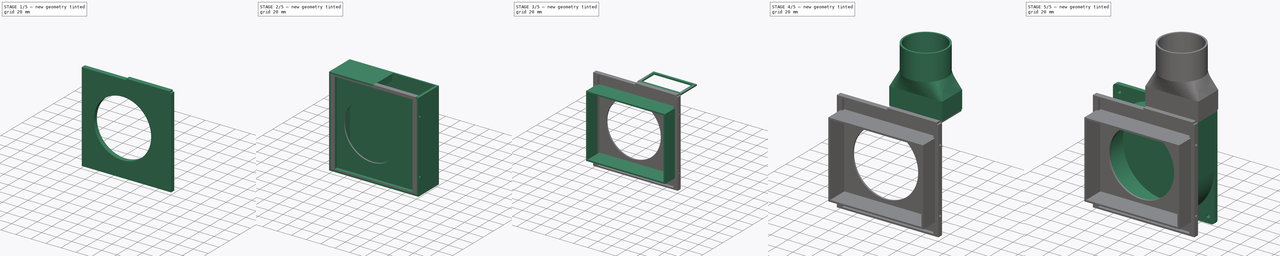
[diagram: build sequence overview — one tinted view per stage of 5, left to right]
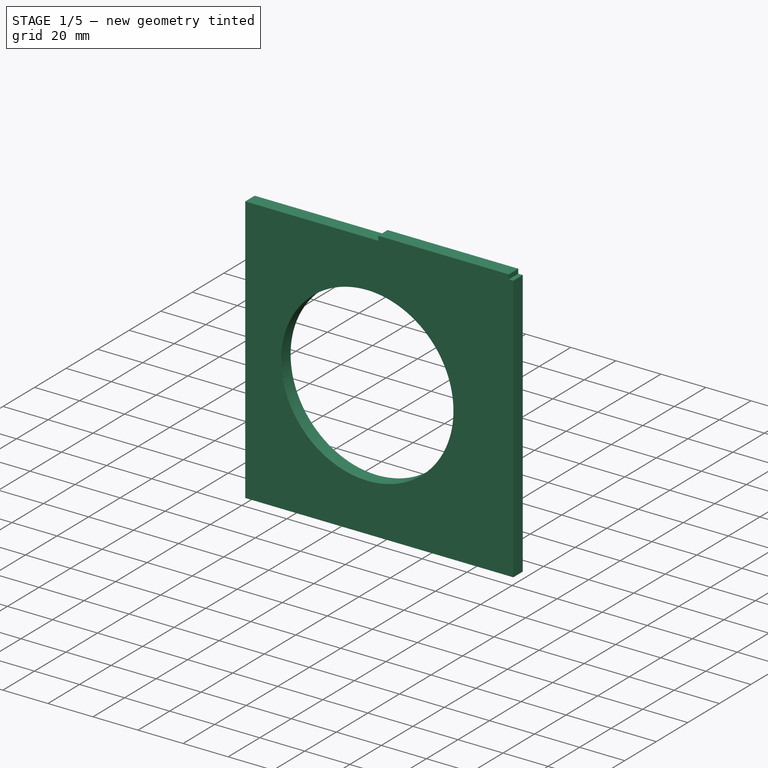
[diagram: stage 1 of 5 — iso view after this stage's code; geometry added in this stage tinted green]
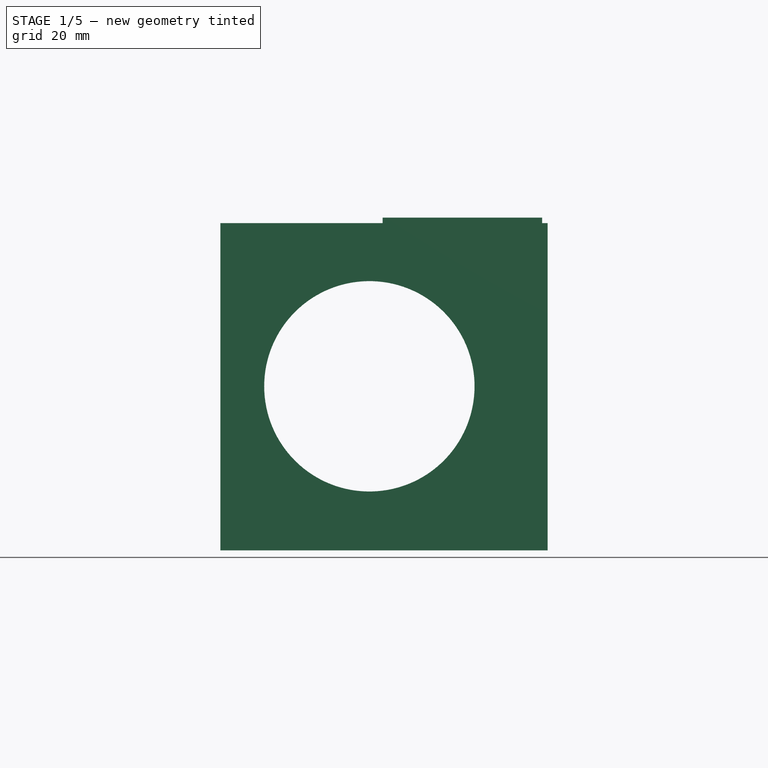
[diagram: stage 1 of 5 — front view after this stage's code; geometry added in this stage tinted green]
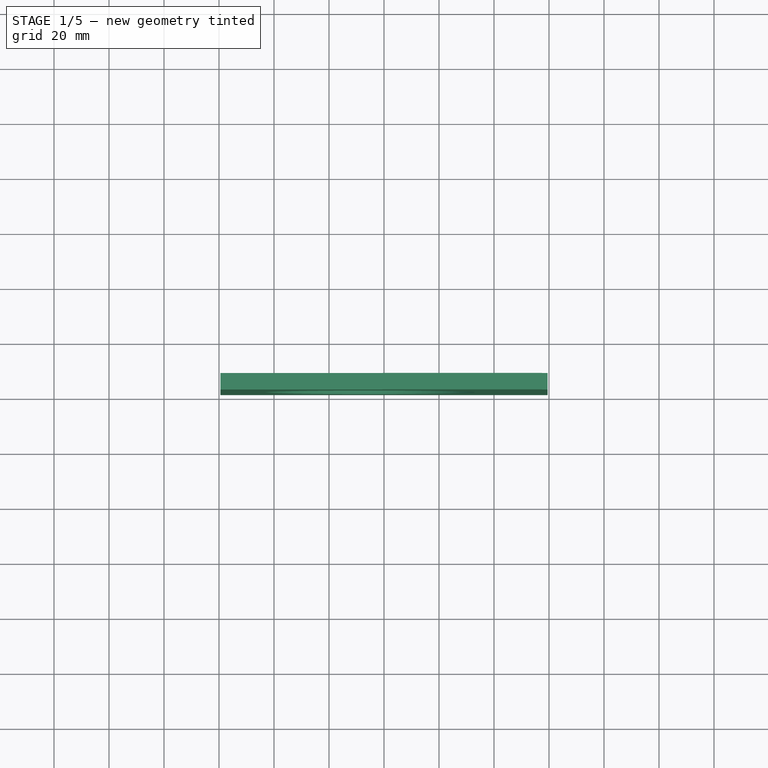
[diagram: stage 1 of 5 — top view after this stage's code; geometry added in this stage tinted green]
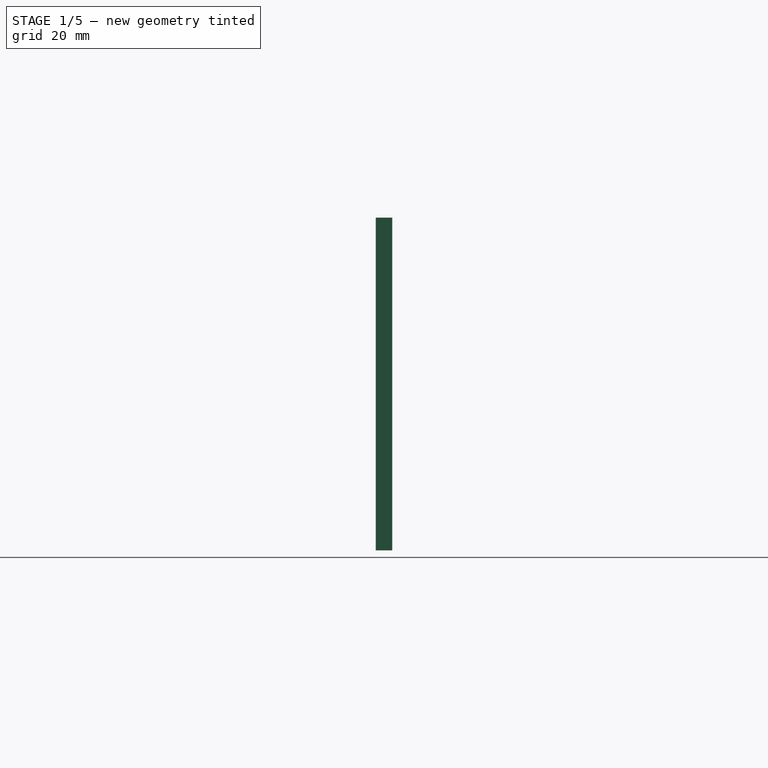
[diagram: stage 1 of 5 — right view after this stage's code; geometry added in this stage tinted green]
FCSTD DOCUMENT  (FreeCAD 0.21R33771 (Git))
Label: RadialExhaustV2.1
License: All rights reserved
LicenseURL: http://en.wikipedia.org/wiki/All_rights_reserved
objects: Sketcher::SketchObject×18, PartDesign::Pad×12, PartDesign::Pocket×7, PartDesign::Body×5, PartDesign::Fillet×1, PartDesign::AdditiveLoft×1
note: 65 computed .brp shape members not serialized (recipe doc carries the construction recipe); baked Part::Feature solids carry a one-line shape summary decoded from their .brp

FEATURE [Sketcher::SketchObject] Sketch  label="FanBackSketch"
  FullyConstrained = true
  MapMode = 5
  Placement = pos=(0,0,0) rot=(1,0,0;1.5708rad)
  Support = -> [XZ_Plane]
  sketch-geometry (8):
    g0: LineSegment StartX=59.5 StartY=-59.5 StartZ=0 EndX=59.5 EndY=59.5 EndZ=0
    g1: LineSegment StartX=59.5 StartY=59.5 StartZ=0 EndX=-59.5 EndY=59.5 EndZ=0
    g2: LineSegment StartX=-59.5 StartY=59.5 StartZ=0 EndX=-59.5 EndY=-59.5 EndZ=0
    g3: LineSegment StartX=-59.5 StartY=-59.5 StartZ=0 EndX=59.5 EndY=-59.5 EndZ=0
    g4: GeomPoint X=0 Y=0 Z=0
    g5: Circle CenterX=-52 CenterY=52 CenterZ=0 NormalX=0 NormalY=0 NormalZ=1 AngleXU=0 Radius=2
    g6: Circle CenterX=52 CenterY=-52 CenterZ=0 NormalX=0 NormalY=0 NormalZ=1 AngleXU=0 Radius=2
    g7: Circle CenterX=-52 CenterY=-52 CenterZ=0 NormalX=0 NormalY=0 NormalZ=1 AngleXU=0 Radius=2
  constraints (22):
    c: Coincident(g0,g1)
    c: Coincident(g1,g2)
    c: Coincident(g2,g3)
    c: Coincident(g3,g0)
    c: Horizontal(g1)
    c: Horizontal(g3)
    c: Vertical(g0)
    c: Vertical(g2)
    c: Symmetric(g1,g0,g4)
    c: Coincident(g4,g-1)
    c: DistanceY(g2,g2) = 119  'height'
    c: DistanceX(g1,g1) = 119  'width'
    c: Equal(g5,g7)
    c: Equal(g5,g6)
    c: Diameter(g5) = 4  'skrewDiameter'
    c: Vertical(g5,g7)
    c: Horizontal(g7,g6)
    c: DistanceX(g2,g7) = 7.5
    c: DistanceY(g2,g7) = 7.5
    c: DistanceY(g5,g1) = 7.5
    c: DistanceX(g6,g0) = 7.5
    c: DistanceX(g7,g4) = 52  'skrewOffset'
FEATURE [PartDesign::Pad] Pad  label="FanBackPad"
  Direction = (0,-1,-2e-16)
  Length = 5
  Length2 = 10
  Placement = pos=(0,0,0) rot=(1,0,0;1.5708rad)
  Profile = -> Sketch
  ReferenceAxis = -> Sketch [N_Axis]
  Type = 0
FEATURE [PartDesign::Body] Body  label="FanBody"
  Group = -> [Sketch,Pad,Sketch001,Pad001,Sketch002,Pocket,Sketch003,Pocket001,Fillet]
  Origin = -> Origin
  Tip = -> Fillet
FEATURE [Sketcher::SketchObject] Sketch004  label="CasingBackSketch"
  FullyConstrained = true
  MapMode = 5
  Placement = pos=(0,0,0) rot=(1,0,0;1.5708rad)
  Support = -> [XZ_Plane001]
  expr: .Constraints.height = <<FanBackSketch>>.Constraints.height + 2 mm + 2 mm
  expr: .Constraints.width = <<FanBackSketch>>.Constraints.width + 4 mm
  expr: Constraints[13] = <<FanBackSketch>>.Constraints.skrewDiameter
  expr: Constraints[14] = <<FanBackSketch>>.Constraints.skrewOffset
  expr: Constraints[15] = <<FanBackSketch>>.Constraints.skrewOffset
  expr: Constraints[20] = <<FanBackSketch>>.Constraints.width / 2 + 2 mm
  sketch-geometry (8):
    g0: LineSegment StartX=-61.5 StartY=61.5 StartZ=0 EndX=-61.5 EndY=-61.5 EndZ=0
    g1: LineSegment StartX=-61.5 StartY=-61.5 StartZ=0 EndX=61.5 EndY=-61.5 EndZ=0
    g2: LineSegment StartX=61.5 StartY=-61.5 StartZ=0 EndX=61.5 EndY=61.5 EndZ=0
    g3: LineSegment StartX=61.5 StartY=61.5 StartZ=0 EndX=-61.5 EndY=61.5 EndZ=0
    g4: GeomPoint X=0 Y=0 Z=0
    g5: Circle CenterX=-52 CenterY=52 CenterZ=0 NormalX=0 NormalY=0 NormalZ=1 AngleXU=0 Radius=2
    g6: Circle CenterX=-52 CenterY=-52 CenterZ=0 NormalX=0 NormalY=0 NormalZ=1 AngleXU=0 Radius=2
    g7: Circle CenterX=52 CenterY=-52 CenterZ=0 NormalX=0 NormalY=0 NormalZ=1 AngleXU=0 Radius=2
  constraints (21):
    c: Coincident(g0,g1)
    c: Coincident(g1,g2)
    c: Coincident(g2,g3)
    c: Coincident(g3,g0)
    c: Horizontal(g1)
    c: Horizontal(g3)
    c: Vertical(g0)
    c: Vertical(g2)
    c: Coincident(g4,g-1)
    c: DistanceY(g0,g0) = 123  'height'
    c: DistanceX(g3,g3) = 123  'width'
    c: Equal(g5,g6)
    c: Equal(g5,g7)
    c: Diameter(g5) = 4
    c: DistanceY(g6,g4) = 52
    c: DistanceX(g6,g4) = 52
    c: Vertical(g6,g5)
    c: Horizontal(g6,g7)
    c: Symmetric(g7,g5,g4)
    c: DistanceY(g1,g4) = 61.5
    c: DistanceX(g0,g4) = 61.5
FEATURE [PartDesign::Pad] Pad002  label="CasingBackPad"
  Direction = (0,-1,-2e-16)
  Length = 2
  Length2 = 10
  Placement = pos=(0,0,0) rot=(1,0,0;1.5708rad)
  Profile = -> Sketch004
  ReferenceAxis = -> Sketch004 [N_Axis]
  Reversed = true
  Type = 0
FEATURE [PartDesign::Body] Body001  label="FanCasing"
  Group = -> [Sketch004,Pad002,Sketch005,Pad003,Sketch014,Pocket002,Sketch015,Pocket003]
  Origin = -> Origin001
  Tip = -> Pocket003
FEATURE [Sketcher::SketchObject] Sketch016  label="FrontBaseSketch"
  AttachmentOffset = pos=(0,0,32.5) rot=(0,0,1;0rad)
  FullyConstrained = true
  MapMode = 5
  Placement = pos=(0,-32.5,7.2e-15) rot=(1,0,0;1.5708rad)
  Support = -> [XZ_Plane004]
  expr: Constraints[10] = <<FanBackSketch>>.Constraints.width
  expr: Constraints[22] = <<CasingShellSketch>>.Constraints.fanAttachementGapWidth
  expr: Constraints[25] = <<FanShellSketch>>.Constraints.inntakeDiameter
  expr: Constraints[26] = <<FanShellSketch>>.Constraints.inntakeHeightOffset
  expr: Constraints[27] = <<FanShellSketch>>.Constraints.inntakeWidthOffset
  expr: Constraints[9] = <<FanBackSketch>>.Constraints.height
  sketch-geometry (11):
    g0: LineSegment StartX=59.5 StartY=-59.5 StartZ=0 EndX=59.5 EndY=59.5 EndZ=0
    g1: LineSegment StartX=-59.5 StartY=59.5 StartZ=0 EndX=-59.5 EndY=-59.5 EndZ=0
    g2: LineSegment StartX=-59.5 StartY=-59.5 StartZ=0 EndX=59.5 EndY=-59.5 EndZ=0
    g3: GeomPoint X=0 Y=0 Z=0
    g4: LineSegment StartX=-0.5 StartY=59.5 StartZ=0 EndX=-59.5 EndY=59.5 EndZ=0
    g5: LineSegment StartX=-0.5 StartY=61.5 StartZ=0 EndX=-0.5 EndY=59.5 EndZ=0
    g6: LineSegment StartX=59.5 StartY=59.5 StartZ=0 EndX=57.5 EndY=59.5 EndZ=0
    g7: LineSegment StartX=57.5 StartY=59.5 StartZ=0 EndX=57.5 EndY=61.5 EndZ=0
    g8: LineSegment StartX=57.5 StartY=61.5 StartZ=0 EndX=-0.5 EndY=61.5 EndZ=0
    g9: GeomPoint X=0 Y=0 Z=0
    g10: Circle CenterX=-5.32 CenterY=0.16 CenterZ=0 NormalX=0 NormalY=0 NormalZ=1 AngleXU=0 Radius=38.25
  constraints (28):
    c: Coincident(g0,g6)
    c: Coincident(g4,g1)
    c: Coincident(g1,g2)
    c: Coincident(g2,g0)
    c: Horizontal(g2)
    c: Vertical(g0)
    c: Vertical(g1)
    c: Symmetric(g4,g0,g3)
    c: Coincident(g3,g-1)
    c: DistanceY(g1,g1) = 119
    c: DistanceX(g4,g6) = 119
    c: Coincident(g5,g4)
    c: Horizontal(g4)
    c: Coincident(g8,g5)
    c: Coincident(g6,g7)
    c: Coincident(g7,g8)
    c: Vertical(g5)
    c: Horizontal(g8)
    c: Vertical(g7)
    c: Horizontal(g6)
    c: DistanceX(g6,g6) = 2
    c: DistanceY(g7,g7) = 2
    c: DistanceX(g8,g8) = 58
    c: DistanceY(g5,g5) = 2
    c: Coincident(g9,g3)
    c: Diameter(g10) = 76.5
    c: DistanceY(g3,g10) = 0.16
    c: DistanceX(g10,g3) = 5.32
FEATURE [PartDesign::Pad] Pad010  label="FrontBasePad"
  Direction = (0,-1,2e-16)
  Length = 2
  Length2 = 10
  Placement = pos=(0,0,0) rot=(1,0,0;1.5708rad)
  Profile = -> Sketch016
  ReferenceAxis = -> Sketch016 [N_Axis]
  Type = 0
FEATURE [PartDesign::Pad] Pad011
  BaseFeature = -> Pad010
  Direction = (0,-1,2e-16)
  Length = 4
  Length2 = 10
  Placement = pos=(0,0,0) rot=(1,0,0;1.5708rad)
  Profile = -> Pad010 [Face11]
  Type = 0
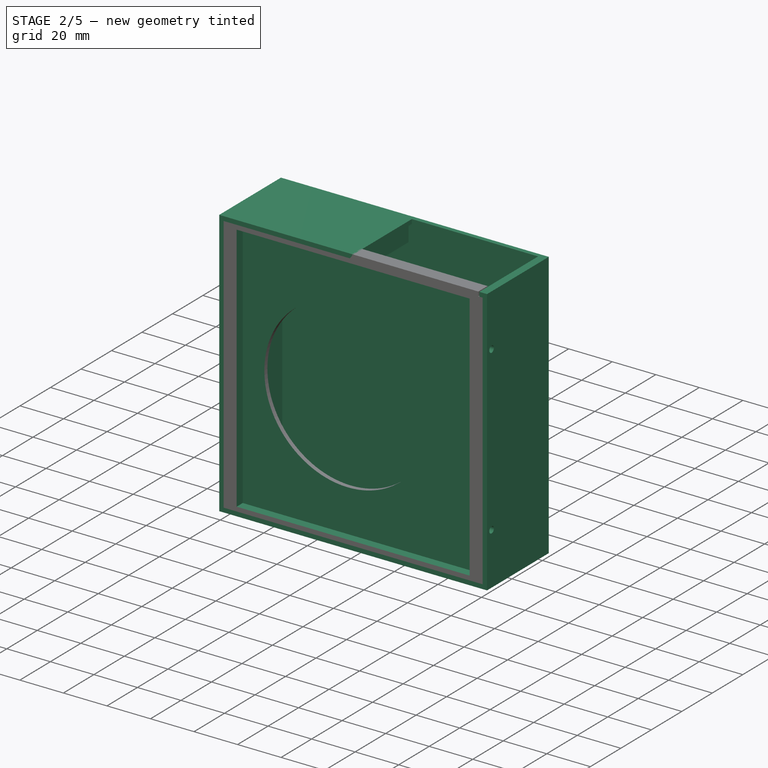
[diagram: stage 2 of 5 — iso view after this stage's code; geometry added in this stage tinted green]
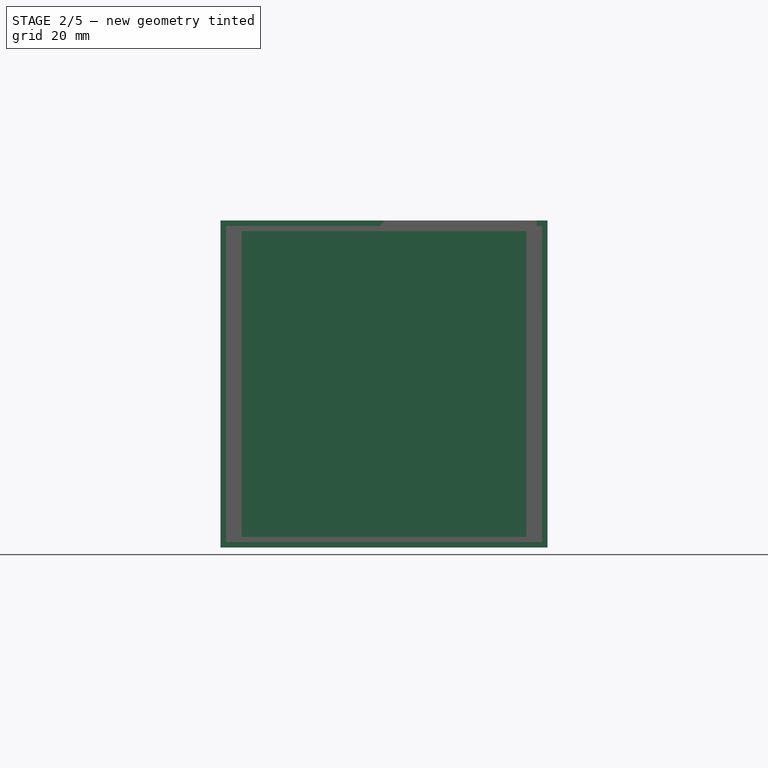
[diagram: stage 2 of 5 — front view after this stage's code; geometry added in this stage tinted green]
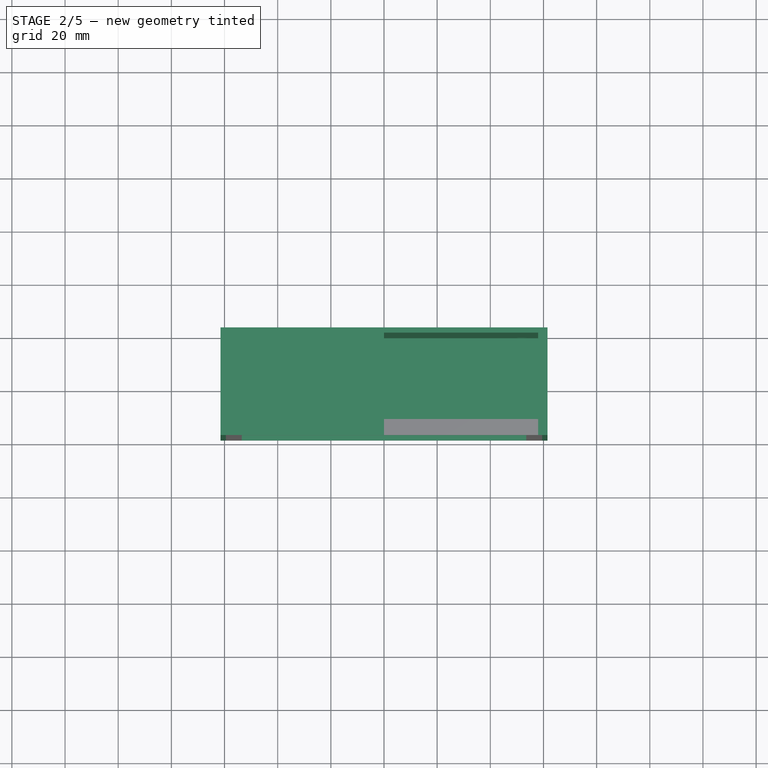
[diagram: stage 2 of 5 — top view after this stage's code; geometry added in this stage tinted green]
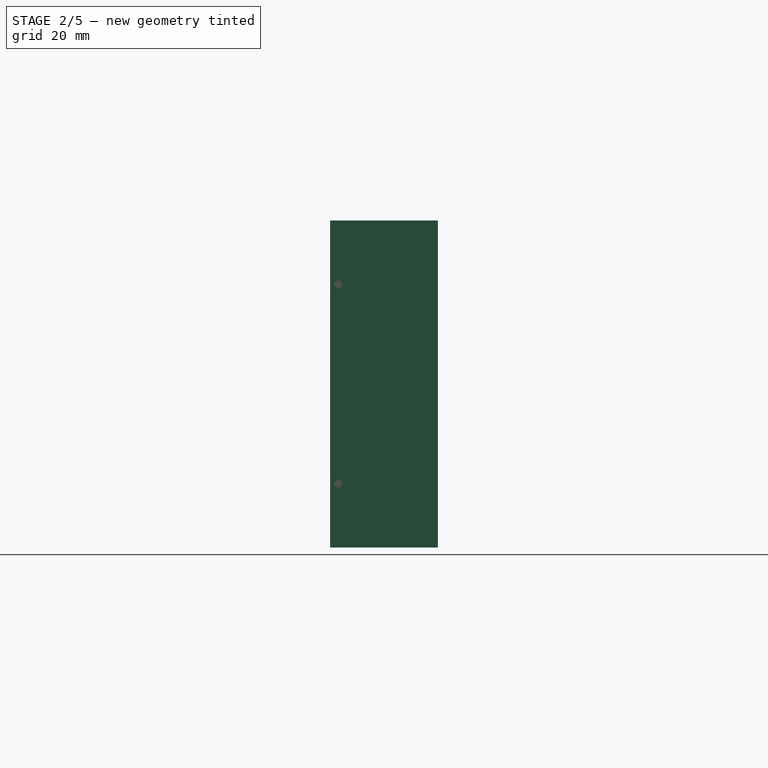
[diagram: stage 2 of 5 — right view after this stage's code; geometry added in this stage tinted green]
FEATURE [Sketcher::SketchObject] Sketch005  label="CasingShellSketch"
  ExternalGeometry = -> [Pad002]
  FullyConstrained = true
  MapMode = 5
  Placement = pos=(0,0,0) rot=(1,0,0;1.5708rad)
  Support = -> [Pad002]
  sketch-geometry (16):
    g0: LineSegment StartX=-61.5 StartY=-61.5 StartZ=0 EndX=61.5 EndY=-61.5 EndZ=0
    g1: LineSegment StartX=61.5 StartY=-61.5 StartZ=0 EndX=61.5 EndY=61.5 EndZ=0
    g2: LineSegment StartX=-61.5 StartY=61.5 StartZ=0 EndX=-61.5 EndY=-61.5 EndZ=0
    g3: LineSegment StartX=58 StartY=61.5 StartZ=0 EndX=61.5 EndY=61.5 EndZ=0
    g4: LineSegment StartX=-61.5 StartY=61.5 StartZ=0 EndX=0 EndY=61.5 EndZ=0
    g5: LineSegment StartX=58 StartY=61.5 StartZ=0 EndX=58 EndY=59.5 EndZ=0
    g6: LineSegment StartX=58 StartY=59.5 StartZ=0 EndX=59.5 EndY=59.5 EndZ=0
    g7: LineSegment StartX=-4.5 StartY=51.5 StartZ=0 EndX=-4.5 EndY=59.5 EndZ=0
    g8: LineSegment StartX=-4.5 StartY=59.5 StartZ=0 EndX=-59.5 EndY=59.5 EndZ=0
    g9: LineSegment StartX=-1.5 StartY=59.5 StartZ=0 EndX=0 EndY=59.5 EndZ=0
    g10: LineSegment StartX=0 StartY=59.5 StartZ=0 EndX=0 EndY=61.5 EndZ=0
    g11: LineSegment StartX=-1.5 StartY=59.5 StartZ=0 EndX=-1.5 EndY=51.5 EndZ=0
    g12: LineSegment StartX=-1.5 StartY=51.5 StartZ=0 EndX=-4.5 EndY=51.5 EndZ=0
    g13: LineSegment StartX=-59.5 StartY=-59.5 StartZ=0 EndX=-59.5 EndY=59.5 EndZ=0
    g14: LineSegment StartX=59.5 StartY=59.5 StartZ=0 EndX=59.5 EndY=-59.5 EndZ=0
    g15: LineSegment StartX=59.5 StartY=-59.5 StartZ=0 EndX=-59.5 EndY=-59.5 EndZ=0
  constraints (47):
    c: Coincident(g0,g-4)
    c: Horizontal(g0)
    c: DistanceX(g-4,g13) = 2
    c: Coincident(g1,g-5)
    c: Coincident(g2,g0)
    c: PointOnObject(g5,g-3)
    c: Coincident(g3,g1)
    c: Coincident(g4,g2)
    c: PointOnObject(g4,g-3)
    c: Horizontal(g4)
    c: Coincident(g8,g13)
    c: DistanceX(g4,g4) = 61.5
    c: DistanceY(g13,g2) = 2
    c: Coincident(g9,g11)
    c: Coincident(g10,g4)
    c: Coincident(g6,g14)
    c: Coincident(g5,g6)
    c: Coincident(g3,g5)
    c: Vertical(g5)
    c: Horizontal(g6)
    c: DistanceX(g14,g1) = 2
    c: DistanceX(g5,g14) = 1.5
    c: Vertical(g2)
    c: DistanceY(g5,g3) = 2
    c: Coincident(g12,g7)
    c: Coincident(g7,g8)
    c: Horizontal(g8)
    c: Vertical(g7)
    c: Coincident(g9,g10)
    c: Coincident(g11,g12)
    c: Horizontal(g12)
    c: Horizontal(g9)
    c: DistanceY(g10,g10) = 2
    c: DistanceX(g9,g9) = 1.5
    c: Vertical(g10)
    c: Vertical(g11)
    c: DistanceY(g11,g11) = 8
    c: DistanceX(g12,g12) = 3
    c: Vertical(g13)
    c: Coincident(g14,g15)
    c: Vertical(g14)
    c: Coincident(g15,g13)
    c: Coincident(g0,g1)
    c: Vertical(g1)
    c: Horizontal(g15)
    c: DistanceY(g0,g14) = 2
    c: DistanceX(g4,g3) = 58  'fanAttachementGapWidth'
FEATURE [PartDesign::Pad] Pad003  label="CasingShellPad"
  BaseFeature = -> Pad002
  Direction = (0,-1,-2e-16)
  Length = 38.5
  Length2 = 10
  Placement = pos=(0,0,0) rot=(1,0,0;1.5708rad)
  Profile = -> Sketch005
  ReferenceAxis = -> Sketch005 [N_Axis]
  Type = 0
FEATURE [PartDesign::Body] Body003  label="DuctAttachement"
  Group = -> [Sketch012,Pad008,Sketch013,AdditiveLoft,Pad009]
  Origin = -> Origin003
  Tip = -> Pad009
FEATURE [Sketcher::SketchObject] Sketch014  label="CutoffSketch"
  AttachmentOffset = pos=(0,0,32.5) rot=(0,0,1;0rad)
  ExternalGeometry = -> [Pad003]
  FullyConstrained = true
  MapMode = 5
  Placement = pos=(0,-32.5,-7.2e-15) rot=(1,0,0;1.5708rad)
  Support = -> [XZ_Plane001]
  sketch-geometry (4):
    g0: LineSegment StartX=-59.5 StartY=59.5 StartZ=0 EndX=59.5 EndY=59.5 EndZ=0
    g1: LineSegment StartX=59.5 StartY=59.5 StartZ=0 EndX=59.5 EndY=-59.5 EndZ=0
    g2: LineSegment StartX=59.5 StartY=-59.5 StartZ=0 EndX=-59.5 EndY=-59.5 EndZ=0
    g3: LineSegment StartX=-59.5 StartY=-59.5 StartZ=0 EndX=-59.5 EndY=59.5 EndZ=0
  constraints (10):
    c: Coincident(g0,g1)
    c: Coincident(g1,g2)
    c: Coincident(g2,g3)
    c: Coincident(g3,g0)
    c: Horizontal(g0)
    c: Horizontal(g2)
    c: Vertical(g1)
    c: Vertical(g3)
    c: Coincident(g0,g-3)
    c: Coincident(g1,g-4)
FEATURE [PartDesign::Pocket] Pocket002  label="CutoffPocket"
  BaseFeature = -> Pad003
  Direction = (0,1,2e-16)
  Length = 5
  Length2 = 5
  Placement = pos=(0,0,0) rot=(1,0,0;1.5708rad)
  Profile = -> Sketch014
  ReferenceAxis = -> Sketch014 [N_Axis]
  Reversed = true
  Type = 1
FEATURE [Sketcher::SketchObject] Sketch015  label="FrontSkrewSketch"
  ExternalGeometry = -> [Pocket002]
  FullyConstrained = true
  MapMode = 5
  Placement = pos=(61.5,0,0) rot=(0.707107,0,0.707107;3.14159rad)
  Support = -> [Pocket002]
  sketch-geometry (2):
    g0: Circle CenterX=-37.5 CenterY=35.5 CenterZ=0 NormalX=0 NormalY=0 NormalZ=1 AngleXU=0 Radius=1.5
    g1: Circle CenterX=37.5 CenterY=35.5 CenterZ=0 NormalX=0 NormalY=0 NormalZ=1 AngleXU=0 Radius=1.5
  constraints (5):
    c: Symmetric(g0,g1,g-2)
    c: Equal(g0,g1)
    c: Diameter(g0) = 3
    c: DistanceY(g0,g-3) = 3  'topOffset'
    c: DistanceX(g0,g1) = 75  'centerOffset'
FEATURE [PartDesign::Pocket] Pocket003  label="FrontSkrewPocket"
  BaseFeature = -> Pocket002
  Direction = (-1,0,2e-16)
  Length = 5
  Length2 = 5
  Placement = pos=(0,0,0) rot=(1,0,0;1.5708rad)
  Profile = -> Sketch015
  ReferenceAxis = -> Sketch015 [N_Axis]
  Type = 1
FEATURE [Sketcher::SketchObject] Sketch017
  ExternalGeometry = -> [Pad011]
  FullyConstrained = true
  MapMode = 5
  Placement = pos=(0,-38.5,9.1e-15) rot=(1,0,0;1.5708rad)
  Support = -> [Pad011]
  sketch-geometry (5):
    g0: LineSegment StartX=-53.5 StartY=57.5 StartZ=0 EndX=-53.5 EndY=-57.5 EndZ=0
    g1: LineSegment StartX=-53.5 StartY=-57.5 StartZ=0 EndX=53.5 EndY=-57.5 EndZ=0
    g2: LineSegment StartX=53.5 StartY=-57.5 StartZ=0 EndX=53.5 EndY=57.5 EndZ=0
    g3: LineSegment StartX=53.5 StartY=57.5 StartZ=0 EndX=-53.5 EndY=57.5 EndZ=0
    g4: GeomPoint X=0 Y=0 Z=0
  constraints (12):
    c: Coincident(g0,g1)
    c: Coincident(g1,g2)
    c: Coincident(g2,g3)
    c: Coincident(g3,g0)
    c: Horizontal(g1)
    c: Horizontal(g3)
    c: Vertical(g0)
    c: Vertical(g2)
    c: Symmetric(g1,g0,g4)
    c: Coincident(g4,g-1)
    c: DistanceX(g-3,g0) = 6
    c: DistanceY(g0,g-3) = 2
FEATURE [PartDesign::Pocket] Pocket004
  BaseFeature = -> Pad011
  Direction = (0,1,-2e-16)
  Length = 4
  Length2 = 5
  Placement = pos=(0,0,0) rot=(1,0,0;1.5708rad)
  Profile = -> Sketch017
  ReferenceAxis = -> Sketch017 [N_Axis]
  Type = 0
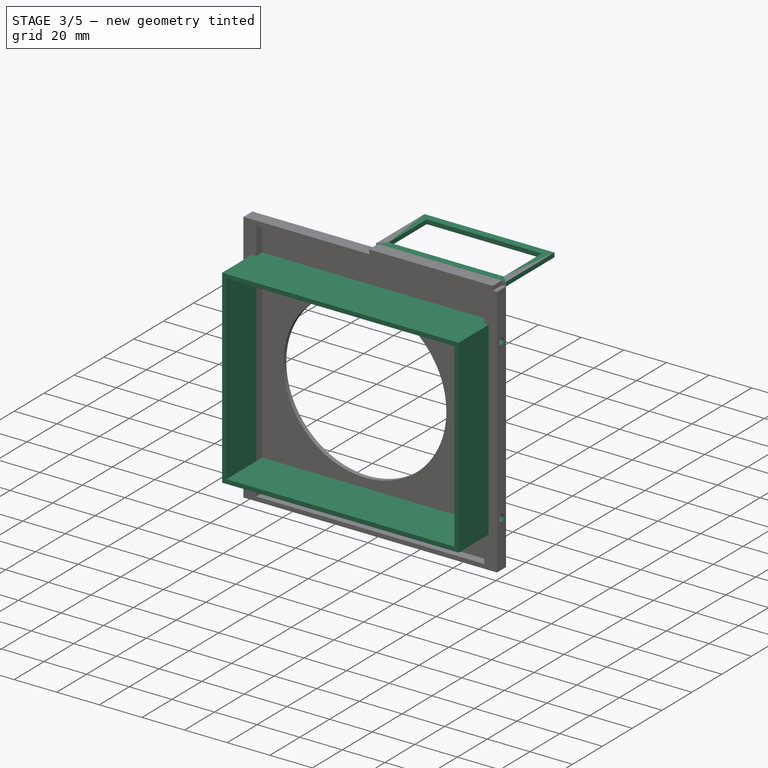
[diagram: stage 3 of 5 — iso view after this stage's code; geometry added in this stage tinted green]
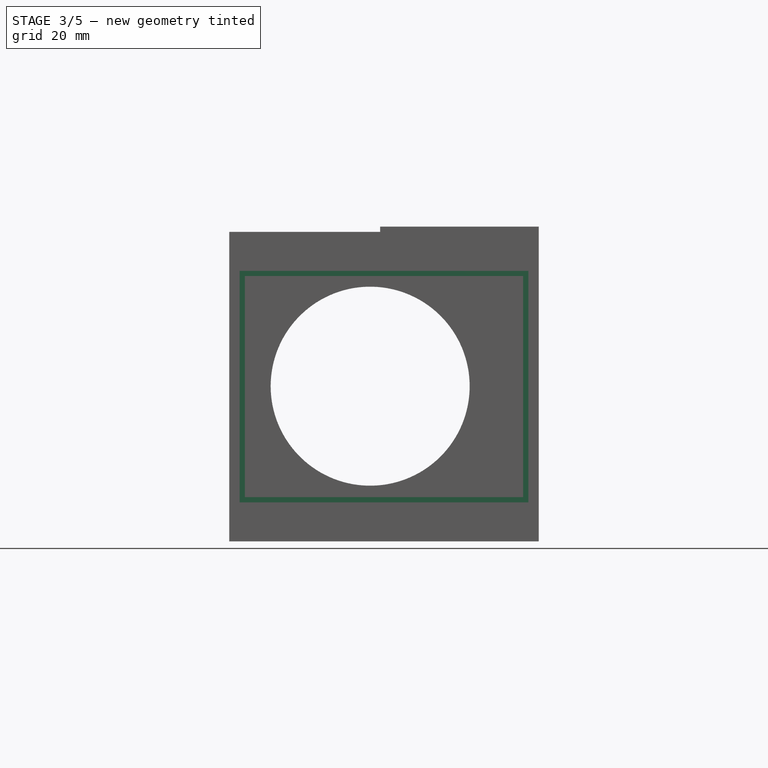
[diagram: stage 3 of 5 — front view after this stage's code; geometry added in this stage tinted green]
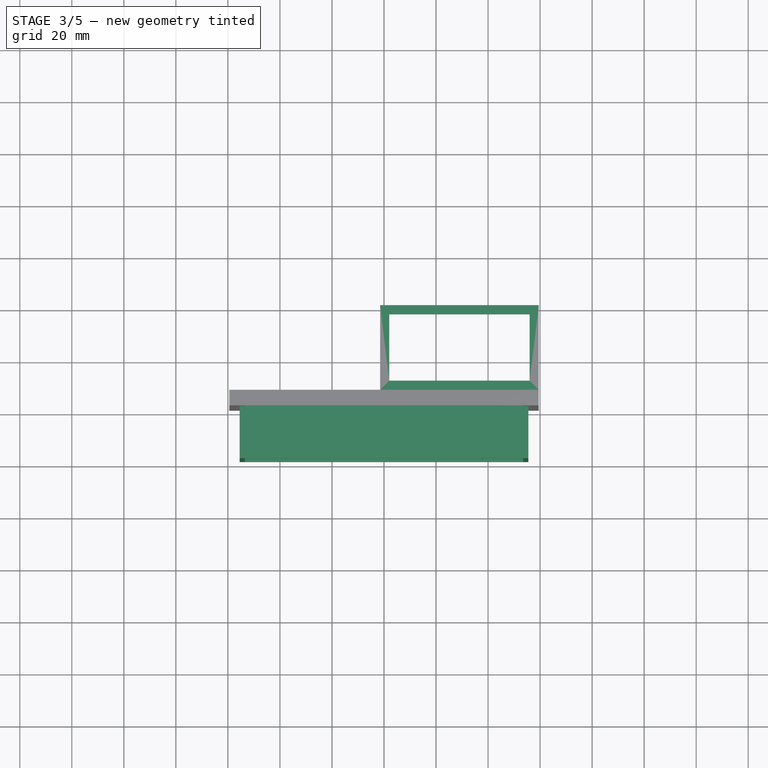
[diagram: stage 3 of 5 — top view after this stage's code; geometry added in this stage tinted green]
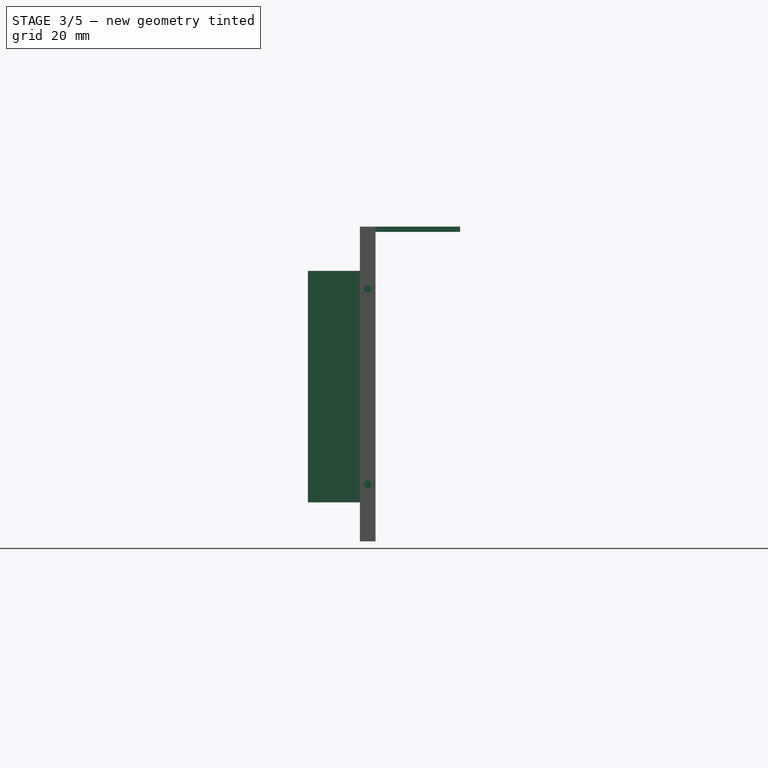
[diagram: stage 3 of 5 — right view after this stage's code; geometry added in this stage tinted green]
FEATURE [Sketcher::SketchObject] Sketch008  label="exhaustBaseSketch"
  AttachmentOffset = pos=(0,0,59.5) rot=(0,0,1;0rad)
  FullyConstrained = true
  MapMode = 5
  Placement = pos=(0,0,59.5) rot=(0,0,1;0rad)
  Support = -> [XY_Plane002]
  expr: Constraints[21] = .Constraints.thickness
  expr: Constraints[22] = .Constraints.thickness
  expr: Constraints[23] = .Constraints.thickness
  sketch-geometry (8):
    g0: LineSegment StartX=-1.5 StartY=0 StartZ=0 EndX=59.5 EndY=0 EndZ=0
    g1: LineSegment StartX=59.5 StartY=0 StartZ=0 EndX=59.5 EndY=-32.5 EndZ=0
    g2: LineSegment StartX=59.5 StartY=-32.5 StartZ=0 EndX=-1.5 EndY=-32.5 EndZ=0
    g3: LineSegment StartX=-1.5 StartY=-32.5 StartZ=0 EndX=-1.5 EndY=0 EndZ=0
    g4: LineSegment StartX=2 StartY=-3.5 StartZ=0 EndX=56 EndY=-3.5 EndZ=0
    g5: LineSegment StartX=56 StartY=-3.5 StartZ=0 EndX=56 EndY=-29 EndZ=0
    g6: LineSegment StartX=56 StartY=-29 StartZ=0 EndX=2 EndY=-29 EndZ=0
    g7: LineSegment StartX=2 StartY=-29 StartZ=0 EndX=2 EndY=-3.5 EndZ=0
  constraints (24):
    c: Coincident(g0,g1)
    c: Coincident(g1,g2)
    c: Coincident(g2,g3)
    c: Coincident(g3,g0)
    c: Horizontal(g0)
    c: Horizontal(g2)
    c: Vertical(g1)
    c: Vertical(g3)
    c: PointOnObject(g0,g-1)
    c: DistanceX(g0,g-1) = 1.5
    c: DistanceY(g3,g3) = 32.5
    c: DistanceX(g2,g2) = 61
    c: Coincident(g4,g5)
    c: Coincident(g5,g6)
    c: Coincident(g6,g7)
    c: Coincident(g7,g4)
    c: Horizontal(g4)
    c: Horizontal(g6)
    c: Vertical(g5)
    c: Vertical(g7)
    c: DistanceX(g0,g4) = 3.5  'thickness'
    c: DistanceY(g4,g0) = 3.5
    c: DistanceX(g5,g1) = 3.5
    c: DistanceY(g1,g5) = 3.5
FEATURE [PartDesign::Pad] Pad006  label="ExhaustBasePad"
  Direction = (0,0,1)
  Length = 2
  Length2 = 10
  Profile = -> Sketch008
  ReferenceAxis = -> Sketch008 [N_Axis]
  Type = 0
FEATURE [Sketcher::SketchObject] Sketch018
  ExternalGeometry = -> [Pocket004]
  FullyConstrained = true
  MapMode = 5
  Placement = pos=(61.5,0,0) rot=(0.707107,0,0.707107;3.14159rad)
  Support = -> [Pocket003]
  expr: Constraints[1] = <<FrontSkrewSketch>>.Constraints.centerOffset
  expr: Constraints[2] = <<FrontSkrewSketch>>.Constraints.topOffset
  sketch-geometry (2):
    g0: Circle CenterX=-37.5 CenterY=35.5 CenterZ=0 NormalX=0 NormalY=0 NormalZ=1 AngleXU=0 Radius=1.5
    g1: Circle CenterX=37.5 CenterY=35.5 CenterZ=0 NormalX=0 NormalY=0 NormalZ=1 AngleXU=0 Radius=1.5
  constraints (5):
    c: Symmetric(g1,g0,g-2)
    c: DistanceX(g0,g1) = 75
    c: DistanceY(g0,g-3) = 3
    c: Equal(g1,g0)
    c: Diameter(g1) = 3
FEATURE [PartDesign::Pocket] Pocket005
  BaseFeature = -> Pocket004
  Direction = (-1,0,2e-16)
  Length = 5
  Length2 = 5
  Placement = pos=(0,0,0) rot=(1,0,0;1.5708rad)
  Profile = -> Sketch018
  ReferenceAxis = -> Sketch018 [N_Axis]
  Type = 0
FEATURE [Sketcher::SketchObject] Sketch019
  ExternalGeometry = -> [Pocket005]
  FullyConstrained = true
  MapMode = 5
  Placement = pos=(-59.5,0,0) rot=(0.707107,0,-0.707107;3.14159rad)
  Support = -> [Pocket005]
  expr: Constraints[1] = <<FrontSkrewSketch>>.Constraints.centerOffset
  expr: Constraints[2] = <<FrontSkrewSketch>>.Constraints.topOffset
  sketch-geometry (2):
    g0: Circle CenterX=-37.5 CenterY=35.5 CenterZ=0 NormalX=0 NormalY=0 NormalZ=1 AngleXU=0 Radius=1.5
    g1: Circle CenterX=37.5 CenterY=35.5 CenterZ=0 NormalX=0 NormalY=0 NormalZ=1 AngleXU=0 Radius=1.5
  constraints (5):
    c: Symmetric(g0,g1,g-2)
    c: DistanceX(g0,g1) = 75
    c: DistanceY(g0,g-3) = 3
    c: Equal(g1,g0)
    c: Diameter(g1) = 3
FEATURE [PartDesign::Pocket] Pocket006
  BaseFeature = -> Pocket005
  Direction = (1,0,2e-16)
  Length = 5
  Length2 = 5
  Placement = pos=(0,0,0) rot=(1,0,0;1.5708rad)
  Profile = -> Sketch019
  ReferenceAxis = -> Sketch019 [N_Axis]
  Type = 0
FEATURE [Sketcher::SketchObject] Sketch020
  ExternalGeometry = -> [Pocket006]
  FullyConstrained = true
  MapMode = 5
  Placement = pos=(0,-34.5,8.5e-15) rot=(1,0,0;1.5708rad)
  Support = -> [Pocket006]
  sketch-geometry (8):
    g0: LineSegment StartX=-53.5 StartY=44.5 StartZ=0 EndX=53.5 EndY=44.5 EndZ=0
    g1: LineSegment StartX=53.5 StartY=-44.5 StartZ=0 EndX=-53.5 EndY=-44.5 EndZ=0
    g2: LineSegment StartX=-53.5 StartY=-42.5 StartZ=0 EndX=53.5 EndY=-42.5 EndZ=0
    g3: LineSegment StartX=53.5 StartY=42.5 StartZ=0 EndX=-53.5 EndY=42.5 EndZ=0
    g4: LineSegment StartX=-53.5 StartY=44.5 StartZ=0 EndX=-53.5 EndY=42.5 EndZ=0
    g5: LineSegment StartX=53.5 StartY=44.5 StartZ=0 EndX=53.5 EndY=42.5 EndZ=0
    g6: LineSegment StartX=53.5 StartY=-44.5 StartZ=0 EndX=53.5 EndY=-42.5 EndZ=0
    g7: LineSegment StartX=-53.5 StartY=-44.5 StartZ=0 EndX=-53.5 EndY=-42.5 EndZ=0
  constraints (23):
    c: PointOnObject(g0,g-3)
    c: PointOnObject(g0,g-4)
    c: Horizontal(g0)
    c: PointOnObject(g1,g-4)
    c: PointOnObject(g1,g-3)
    c: Horizontal(g1)
    c: PointOnObject(g2,g-3)
    c: PointOnObject(g2,g-4)
    c: Horizontal(g2)
    c: PointOnObject(g3,g-4)
    c: Horizontal(g3)
    c: DistanceY(g1,g2) = 2
    c: DistanceY(g3,g0) = 2
    c: Symmetric(g3,g2,g-1)
    c: DistanceY(g2,g3) = 85
    c: Coincident(g4,g0)
    c: Coincident(g4,g3)
    c: Coincident(g5,g0)
    c: Coincident(g5,g3)
    c: Coincident(g6,g1)
    c: Coincident(g6,g2)
    c: Coincident(g7,g1)
    c: Coincident(g7,g2)
FEATURE [PartDesign::Pad] Pad012
  BaseFeature = -> Pocket006
  Direction = (0,-1,2e-16)
  Length = 4
  Length2 = 10
  Placement = pos=(0,0,0) rot=(1,0,0;1.5708rad)
  Profile = -> Sketch020
  ReferenceAxis = -> Sketch020 [N_Axis]
  Type = 0
FEATURE [Sketcher::SketchObject] Sketch021
  ExternalGeometry = -> [Pad012]
  FullyConstrained = true
  MapMode = 5
  Placement = pos=(0,-38.5,9.1e-15) rot=(1,0,0;1.5708rad)
  Support = -> [Pad012]
  sketch-geometry (8):
    g0: LineSegment StartX=-53.5 StartY=42.5 StartZ=0 EndX=-53.5 EndY=-42.5 EndZ=0
    g1: LineSegment StartX=-53.5 StartY=-42.5 StartZ=0 EndX=53.5 EndY=-42.5 EndZ=0
    g2: LineSegment StartX=53.5 StartY=-42.5 StartZ=0 EndX=53.5 EndY=42.5 EndZ=0
    g3: LineSegment StartX=53.5 StartY=42.5 StartZ=0 EndX=-53.5 EndY=42.5 EndZ=0
    g4: LineSegment StartX=-55.5 StartY=44.5 StartZ=0 EndX=-55.5 EndY=-44.5 EndZ=0
    g5: LineSegment StartX=-55.5 StartY=-44.5 StartZ=0 EndX=55.5 EndY=-44.5 EndZ=0
    g6: LineSegment StartX=55.5 StartY=-44.5 StartZ=0 EndX=55.5 EndY=44.5 EndZ=0
    g7: LineSegment StartX=55.5 StartY=44.5 StartZ=0 EndX=-55.5 EndY=44.5 EndZ=0
  constraints (19):
    c: Coincident(g-8,g0)
    c: Coincident(g0,g-8)
    c: Coincident(g0,g1)
    c: Coincident(g1,g-7)
    c: Coincident(g1,g2)
    c: Coincident(g2,g-7)
    c: Coincident(g2,g3)
    c: Coincident(g3,g0)
    c: Vertical(g4)
    c: Coincident(g4,g5)
    c: Horizontal(g5)
    c: Coincident(g5,g6)
    c: Vertical(g6)
    c: Coincident(g6,g7)
    c: Coincident(g7,g4)
    c: Horizontal(g4,g-3)
    c: Horizontal(g5,g-6)
    c: Symmetric(g4,g6,g-2)
    c: DistanceX(g4,g-3) = 2
FEATURE [PartDesign::Pad] Pad013
  BaseFeature = -> Pad012
  Direction = (0,-1,2e-16)
  Length = 20
  Length2 = 10
  Placement = pos=(0,0,0) rot=(1,0,0;1.5708rad)
  Profile = -> Sketch021
  ReferenceAxis = -> Sketch021 [N_Axis]
  Type = 0
FEATURE [PartDesign::Body] Body004  label="Body"
  Group = -> [Sketch016,Sketch018,Pad010,Pad011,Sketch017,Pocket004,Pocket005,Sketch019,Pocket006,Sketch020,Pad012,Sketch021,Pad013]
  Origin = -> Origin004
  Tip = -> Pad013
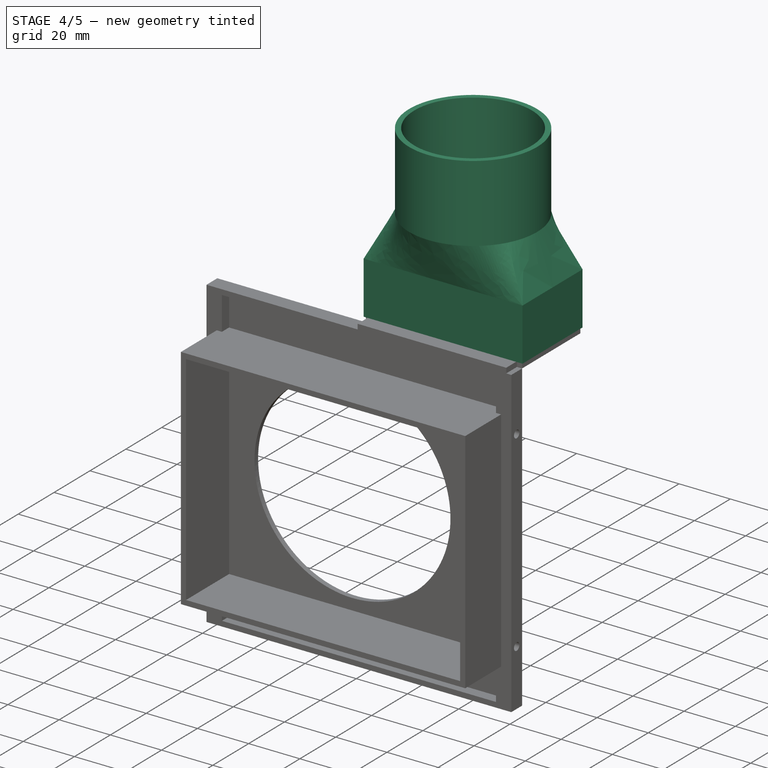
[diagram: stage 4 of 5 — iso view after this stage's code; geometry added in this stage tinted green]
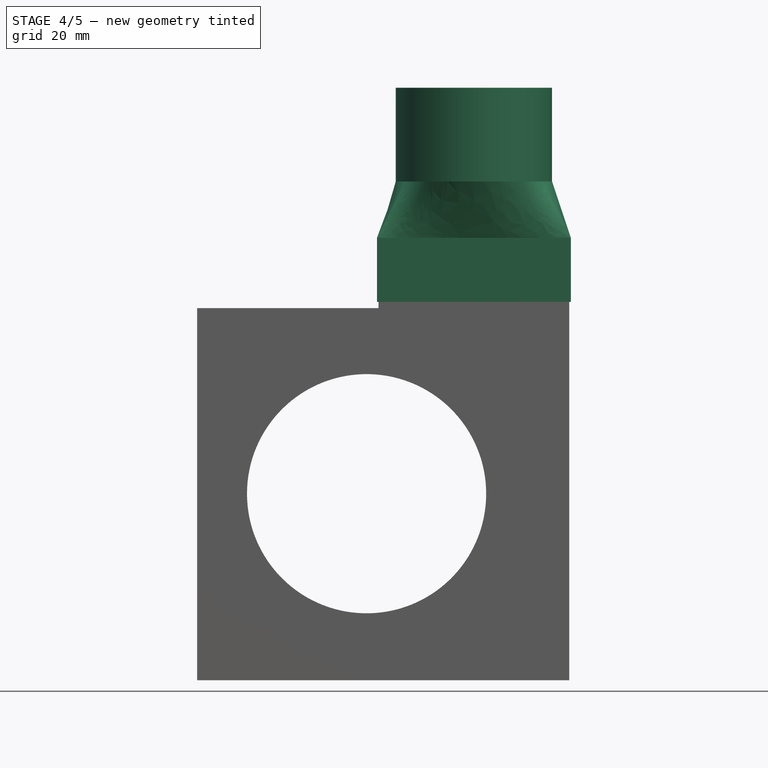
[diagram: stage 4 of 5 — front view after this stage's code; geometry added in this stage tinted green]
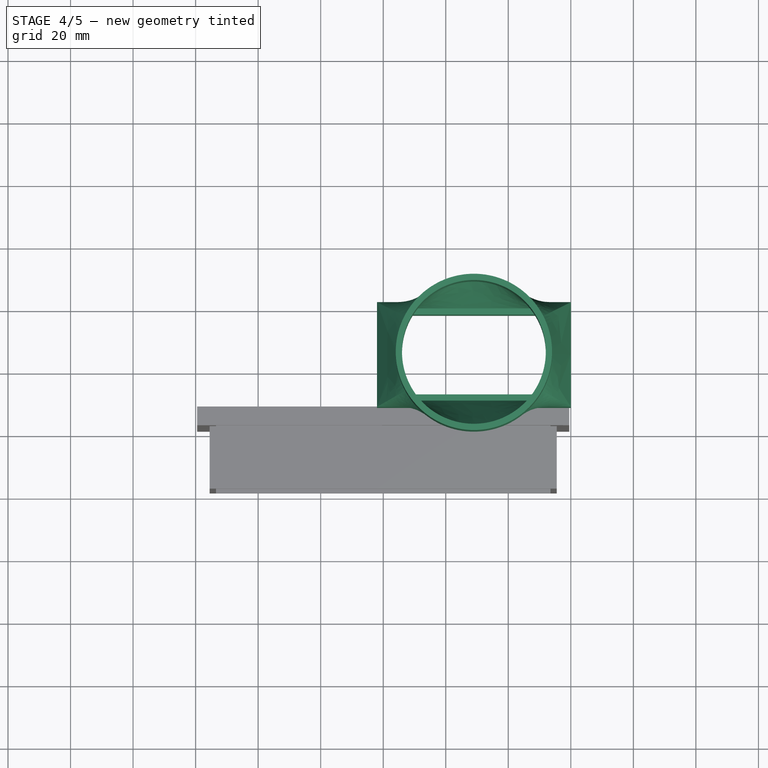
[diagram: stage 4 of 5 — top view after this stage's code; geometry added in this stage tinted green]
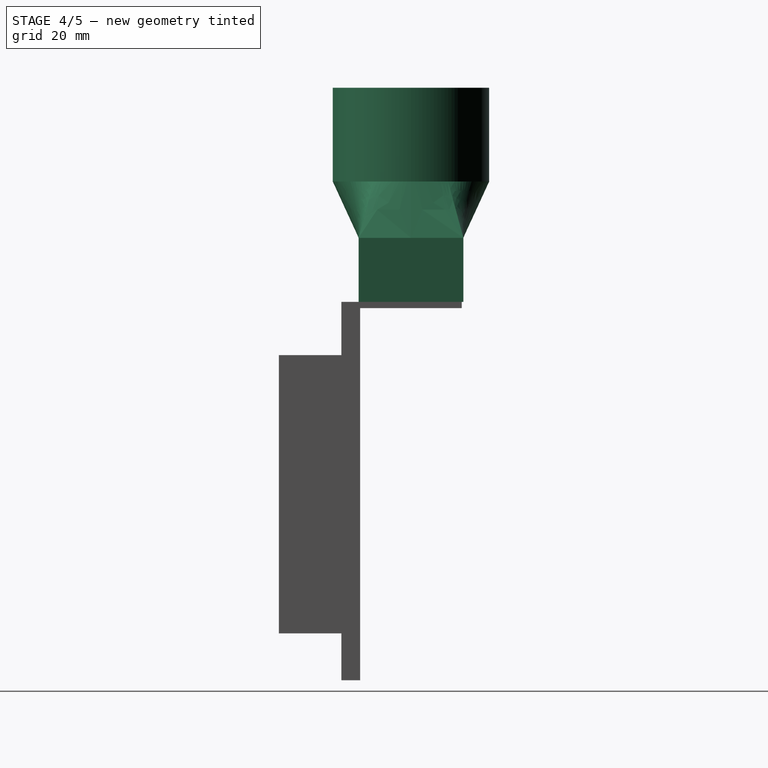
[diagram: stage 4 of 5 — right view after this stage's code; geometry added in this stage tinted green]
FEATURE [Sketcher::SketchObject] Sketch009  label="ExhaustPipeSketch"
  ExternalGeometry = -> [Pad006]
  FullyConstrained = true
  MapMode = 5
  Placement = pos=(0,0,61.5) rot=(0,0,1;0rad)
  Support = -> [Pad006]
  sketch-geometry (8):
    g0: LineSegment StartX=56 StartY=-29 StartZ=0 EndX=2 EndY=-29 EndZ=0
    g1: LineSegment StartX=2 StartY=-29 StartZ=0 EndX=2 EndY=-3.5 EndZ=0
    g2: LineSegment StartX=0 StartY=-1.5 StartZ=0 EndX=58 EndY=-1.5 EndZ=0
    g3: LineSegment StartX=58 StartY=-1.5 StartZ=0 EndX=58 EndY=-31 EndZ=0
    g4: LineSegment StartX=58 StartY=-31 StartZ=0 EndX=0 EndY=-31 EndZ=0
    g5: LineSegment StartX=0 StartY=-31 StartZ=0 EndX=0 EndY=-1.5 EndZ=0
    g6: LineSegment StartX=2 StartY=-3.5 StartZ=0 EndX=56 EndY=-3.5 EndZ=0
    g7: LineSegment StartX=56 StartY=-3.5 StartZ=0 EndX=56 EndY=-29 EndZ=0
  constraints (25):
    c: Coincident(g0,g1)
    c: Horizontal(g0)
    c: Vertical(g1)
    c: Coincident(g2,g3)
    c: Coincident(g3,g4)
    c: Coincident(g4,g5)
    c: Coincident(g5,g2)
    c: Horizontal(g2)
    c: Horizontal(g4)
    c: Vertical(g3)
    c: Vertical(g5)
    c: DistanceY(g3,g0) = 2
    c: DistanceY(g1,g2) = 2
    c: DistanceY(g3,g3) = 29.5  'exhaustHeight'
    c: Vertical(g-1,g2)
    c: DistanceX(g2,g1) = 2
    c: Horizontal(g1,g-3)
    c: Coincident(g6,g1)
    c: Horizontal(g6)
    c: Coincident(g7,g6)
    c: Coincident(g7,g0)
    c: Vertical(g7)
    c: DistanceX(g2,g2) = 58  'exhaustWidth'
    c: DistanceX(g0,g3) = 2
    c: DistanceY(g2,g-1) = 1.5  'centerOffset'
FEATURE [PartDesign::Pad] Pad007  label="ExhaustPipePad"
  BaseFeature = -> Pad006
  Direction = (0,0,1)
  Length = 20
  Length2 = 10
  Profile = -> Sketch009
  ReferenceAxis = -> Sketch009 [N_Axis]
  Type = 0
FEATURE [PartDesign::Body] Body002  label="ExhaustPipe"
  Group = -> [Sketch008,Pad006,Sketch009,Pad007]
  Origin = -> Origin002
  Tip = -> Pad007
FEATURE [Sketcher::SketchObject] Sketch012  label="DuctFanBaseSketch"
  AttachmentOffset = pos=(0,0,61.5) rot=(0,0,1;0rad)
  FullyConstrained = true
  MapMode = 5
  Placement = pos=(0,0,61.5) rot=(0,0,1;0rad)
  Support = -> [XY_Plane003]
  expr: Constraints[17] = <<ExhaustPipeSketch>>.Constraints.exhaustHeight
  expr: Constraints[18] = <<ExhaustPipeSketch>>.Constraints.exhaustWidth
  expr: Constraints[19] = <<ExhaustPipeSketch>>.Constraints.centerOffset
  sketch-geometry (8):
    g0: LineSegment StartX=0 StartY=-1.5 StartZ=0 EndX=58 EndY=-1.5 EndZ=0
    g1: LineSegment StartX=58 StartY=-1.5 StartZ=0 EndX=58 EndY=-31 EndZ=0
    g2: LineSegment StartX=58 StartY=-31 StartZ=0 EndX=0 EndY=-31 EndZ=0
    g3: LineSegment StartX=0 StartY=-31 StartZ=0 EndX=0 EndY=-1.5 EndZ=0
    g4: LineSegment StartX=-2 StartY=0.5 StartZ=0 EndX=60 EndY=0.5 EndZ=0
    g5: LineSegment StartX=60 StartY=0.5 StartZ=0 EndX=60 EndY=-33 EndZ=0
    g6: LineSegment StartX=60 StartY=-33 StartZ=0 EndX=-2 EndY=-33 EndZ=0
    g7: LineSegment StartX=-2 StartY=-33 StartZ=0 EndX=-2 EndY=0.5 EndZ=0
  constraints (24):
    c: Coincident(g0,g1)
    c: Coincident(g1,g2)
    c: Coincident(g2,g3)
    c: Coincident(g3,g0)
    c: Horizontal(g0)
    c: Horizontal(g2)
    c: Vertical(g1)
    c: Vertical(g3)
    c: PointOnObject(g0,g-2)
    c: Coincident(g4,g5)
    c: Coincident(g5,g6)
    c: Coincident(g6,g7)
    c: Coincident(g7,g4)
    c: Horizontal(g4)
    c: Horizontal(g6)
    c: Vertical(g5)
    c: Vertical(g7)
    c: DistanceY(g1,g1) = 29.5
    c: DistanceX(g0,g0) = 58
    c: DistanceY(g0,g-1) = 1.5
    c: DistanceX(g1,g5) = 2
    c: DistanceX(g4,g0) = 2
    c: DistanceY(g0,g4) = 2
    c: DistanceY(g6,g2) = 2
FEATURE [PartDesign::Pad] Pad008  label="DuctkFanBasePad"
  Direction = (0,0,1)
  Length = 20.5
  Length2 = 10
  Profile = -> Sketch012
  ReferenceAxis = -> Sketch012 [N_Axis]
  Type = 0
FEATURE [Sketcher::SketchObject] Sketch013  label="PipeAttachmentSketch"
  AttachmentOffset = pos=(0,0,100) rot=(0,0,1;0rad)
  ExternalGeometry = -> [Pad008]
  FullyConstrained = true
  MapMode = 5
  Placement = pos=(0,0,100) rot=(0,0,1;0rad)
  Support = -> [XY_Plane003]
  expr: Constraints[4] = .Constraints.diameter - 4 mm
  sketch-geometry (3):
    g0: GeomPoint X=29 Y=-16.25 Z=0
    g1: Circle CenterX=29 CenterY=-16.25 CenterZ=0 NormalX=0 NormalY=0 NormalZ=1 AngleXU=0 Radius=25
    g2: Circle CenterX=29 CenterY=-16.25 CenterZ=0 NormalX=0 NormalY=0 NormalZ=1 AngleXU=0 Radius=23
  constraints (5):
    c: Symmetric(g-3,g-4,g0)
    c: Coincident(g1,g0)
    c: Coincident(g2,g1)
    c: Diameter(g1) = 50  'diameter'
    c: Diameter(g2) = 46
FEATURE [PartDesign::AdditiveLoft] AdditiveLoft
  BaseFeature = -> Pad008
  Closed = false
  Profile = -> Pad008 [Face10]
  Ruled = false
  Sections = -> [Sketch013]
FEATURE [PartDesign::Pad] Pad009  label="DuctPAd"
  BaseFeature = -> AdditiveLoft
  Direction = (0,0,1)
  Length = 30
  Length2 = 10
  Profile = -> AdditiveLoft [Face14]
  Type = 0
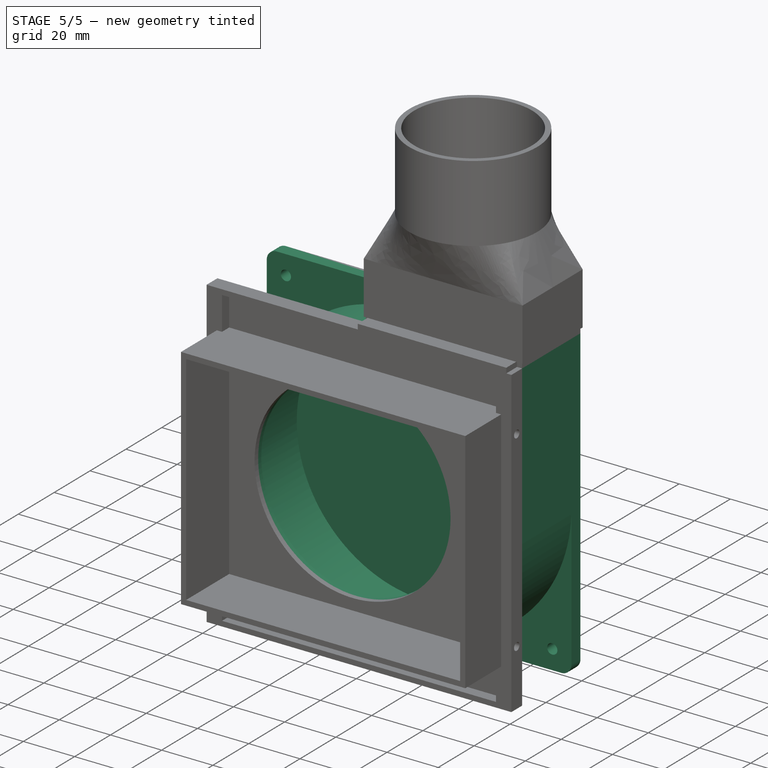
[diagram: stage 5 of 5 — iso view after this stage's code; geometry added in this stage tinted green]
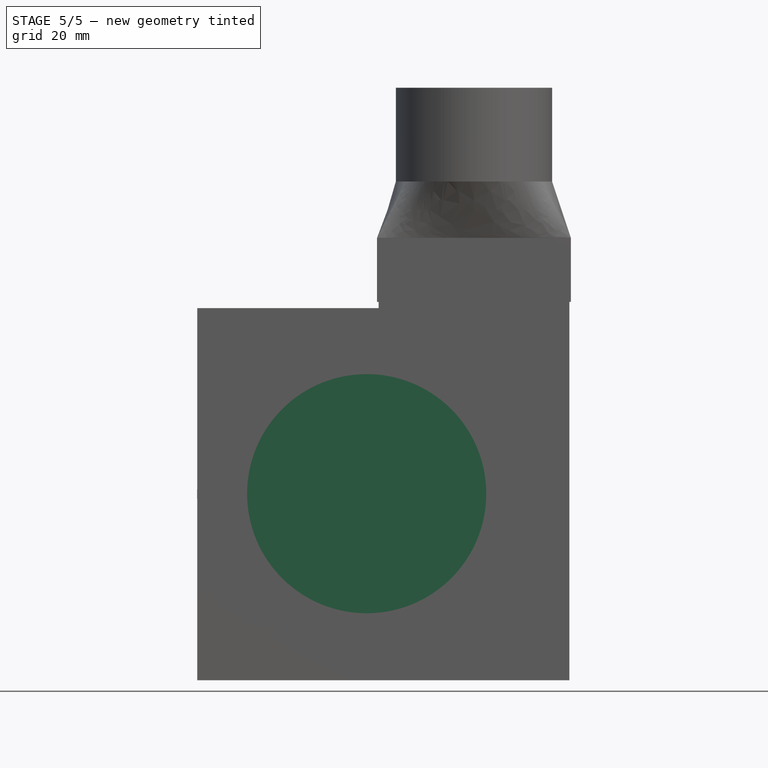
[diagram: stage 5 of 5 — front view after this stage's code; geometry added in this stage tinted green]
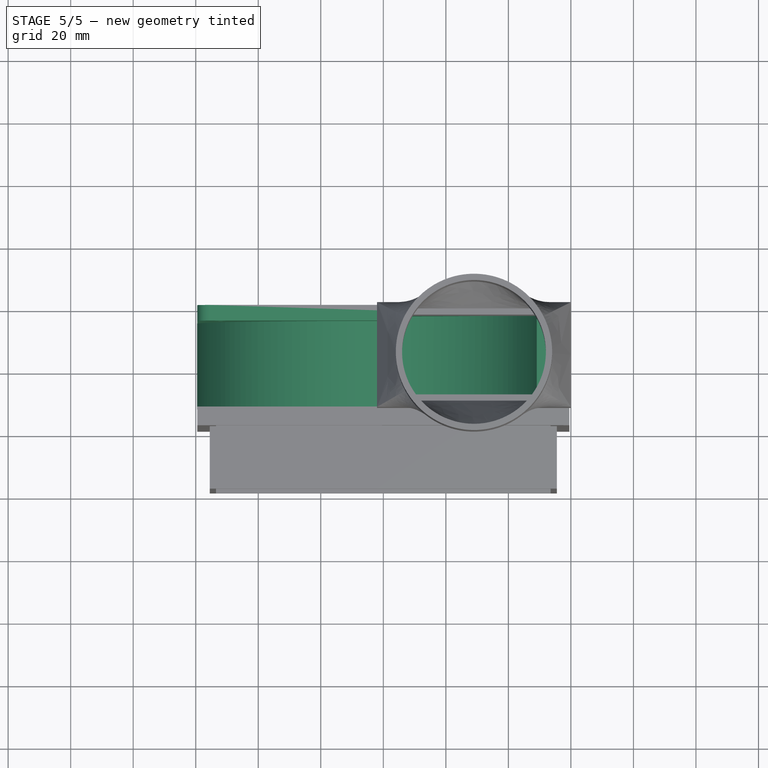
[diagram: stage 5 of 5 — top view after this stage's code; geometry added in this stage tinted green]
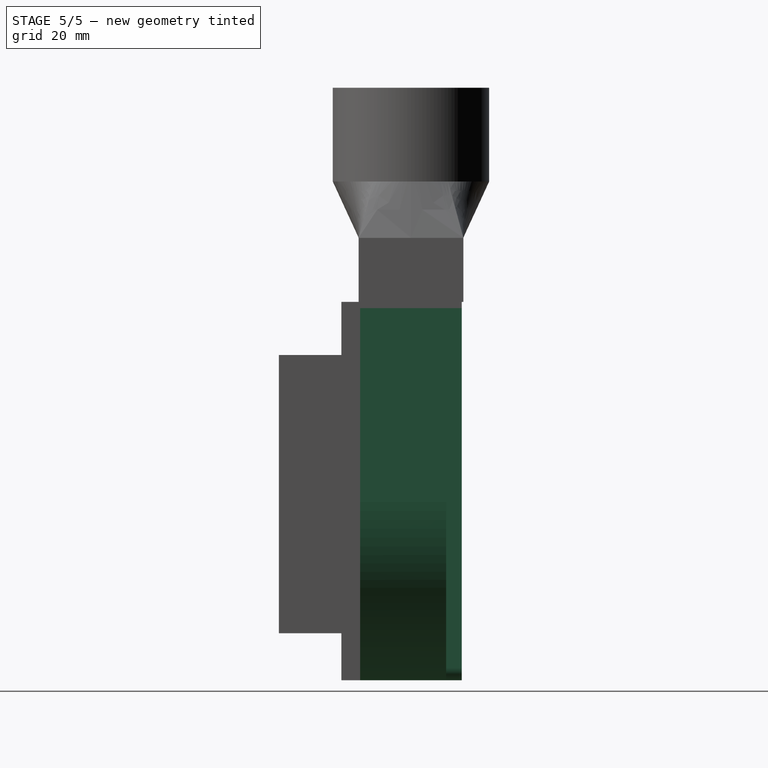
[diagram: stage 5 of 5 — right view after this stage's code; geometry added in this stage tinted green]
FEATURE [Sketcher::SketchObject] Sketch001  label="FanShellSketch"
  ExternalGeometry = -> [Pad]
  FullyConstrained = true
  MapMode = 5
  Placement = pos=(0,-5,-1.1e-15) rot=(1,0,0;1.5708rad)
  Support = -> [Pad]
  sketch-geometry (10):
    g0: Circle CenterX=-5.32 CenterY=0.16 CenterZ=0 NormalX=0 NormalY=0 NormalZ=1 AngleXU=0 Radius=38.25
    g1: LineSegment StartX=59.5 StartY=59.5 StartZ=0 EndX=-1.5 EndY=59.5 EndZ=0
    g2: LineSegment StartX=-1.5 StartY=59.5 StartZ=0 EndX=-1.5 EndY=51.5 EndZ=0
    g3: LineSegment StartX=59.5 StartY=-2.5 StartZ=0 EndX=59.5 EndY=59.5 EndZ=0
    g4: GeomPoint X=-59.5 Y=-2.5 Z=0
    g5: GeomPoint X=-1.5 Y=-59.5 Z=0
    g6: GeomPoint X=59.5 Y=-2.5 Z=0
    g7: ArcOfCircle CenterX=-7.68966 CenterY=0 CenterZ=0 NormalX=0 NormalY=0 NormalZ=1 AngleXU=0 Radius=51.8706 StartAngle=1.45118 EndAngle=3.18981
    g8: ArcOfCircle CenterX=-0.0344828 CenterY=0 CenterZ=0 NormalX=0 NormalY=0 NormalZ=1 AngleXU=0 Radius=59.518 StartAngle=3.18361 EndAngle=4.68776
    g9: ArcOfCircle CenterX=0.0327869 CenterY=0 CenterZ=0 NormalX=0 NormalY=0 NormalZ=1 AngleXU=0 Radius=59.5197 StartAngle=4.68663 EndAngle=6.24117
  constraints (26):
    c: DistanceX(g0,g-1) = 5.32  'inntakeWidthOffset'
    c: Diameter(g0) = 76.5  'inntakeDiameter'
    c: Coincident(g1,g2)
    c: Coincident(g3,g1)
    c: Horizontal(g1)
    c: Vertical(g2)
    c: Vertical(g3)
    c: Coincident(g1,g-7)
    c: DistanceX(g1,g1) = 61  'exhaustWidth'
    c: DistanceY(g2,g2) = 8  'exhaustHeight'
    c: PointOnObject(g4,g-6)
    c: DistanceY(g-6,g4) = 57
    c: PointOnObject(g5,g-8)
    c: Horizontal(g6,g4)
    c: Vertical(g5,g2)
    c: Coincident(g7,g2)
    c: Coincident(g7,g4)
    c: Coincident(g8,g7)
    c: Coincident(g9,g8)
    c: Coincident(g9,g6)
    c: PointOnObject(g7,g-1)
    c: Coincident(g8,g5)
    c: PointOnObject(g8,g-1)
    c: PointOnObject(g9,g-1)
    c: Coincident(g3,g9)
    c: DistanceY(g9,g0) = 0.16  'inntakeHeightOffset'
FEATURE [PartDesign::Pad] Pad001  label="FanShellPad"
  BaseFeature = -> Pad
  Direction = (0,-1,-2e-16)
  Length = 27.5
  Length2 = 10
  Placement = pos=(0,0,0) rot=(1,0,0;1.5708rad)
  Profile = -> Sketch001
  ReferenceAxis = -> Sketch001 [N_Axis]
  Type = 0
FEATURE [Sketcher::SketchObject] Sketch002  label="FanExhaustSketch"
  ExternalGeometry = -> [Pad001]
  FullyConstrained = true
  MapMode = 5
  Placement = pos=(0,-1.32e-14,59.5) rot=(0,0,1;3.14159rad)
  Support = -> [Pad001]
  sketch-geometry (4):
    g0: LineSegment StartX=-57.7 StartY=30.7 StartZ=0 EndX=-0.2 EndY=30.7 EndZ=0
    g1: LineSegment StartX=-0.2 StartY=30.7 StartZ=0 EndX=-0.2 EndY=1.8 EndZ=0
    g2: LineSegment StartX=-0.2 StartY=1.8 StartZ=0 EndX=-57.7 EndY=1.8 EndZ=0
    g3: LineSegment StartX=-57.7 StartY=1.8 StartZ=0 EndX=-57.7 EndY=30.7 EndZ=0
  constraints (12):
    c: Coincident(g0,g1)
    c: Coincident(g1,g2)
    c: Coincident(g2,g3)
    c: Coincident(g3,g0)
    c: Horizontal(g0)
    c: Horizontal(g2)
    c: Vertical(g1)
    c: Vertical(g3)
    c: DistanceY(g0,g-3) = 1.8
    c: DistanceX(g-3,g0) = 1.8
    c: DistanceY(g-1,g1) = 1.8
    c: DistanceX(g0,g0) = 57.5
FEATURE [PartDesign::Pocket] Pocket  label="FanExhaustPocket"
  BaseFeature = -> Pad001
  Direction = (0,2e-16,-1)
  Length = 50
  Length2 = 5
  Placement = pos=(0,0,0) rot=(1,0,0;1.5708rad)
  Profile = -> Sketch002
  ReferenceAxis = -> Sketch002 [N_Axis]
  Type = 0
FEATURE [Sketcher::SketchObject] Sketch003  label="FanInternalSketch"
  ExternalGeometry = -> [Pocket]
  FullyConstrained = true
  MapMode = 5
  Placement = pos=(0,-1.8,-4e-16) rot=(1,0,0;1.5708rad)
  Support = -> [Pocket]
  sketch-geometry (1):
    g0: Circle CenterX=0 CenterY=0 CenterZ=0 NormalX=0 NormalY=0 NormalZ=1 AngleXU=0 Radius=50
  constraints (2):
    c: Coincident(g0,g-1)
    c: Diameter(g0) = 100
FEATURE [PartDesign::Pocket] Pocket001  label="FanInternalPocket"
  BaseFeature = -> Pocket
  Direction = (0,1,2e-16)
  Length = 29
  Length2 = 5
  Placement = pos=(0,0,0) rot=(1,0,0;1.5708rad)
  Profile = -> Sketch003
  ReferenceAxis = -> Sketch003 [N_Axis]
  Reversed = true
  Type = 0
FEATURE [PartDesign::Fillet] Fillet
  Base = -> Pocket001 [Edge12,Edge6,Edge1]
  BaseFeature = -> Pocket001
  Placement = pos=(0,0,0) rot=(1,0,0;1.5708rad)
  Radius = 4
  SupportTransform = false
  UseAllEdges = false
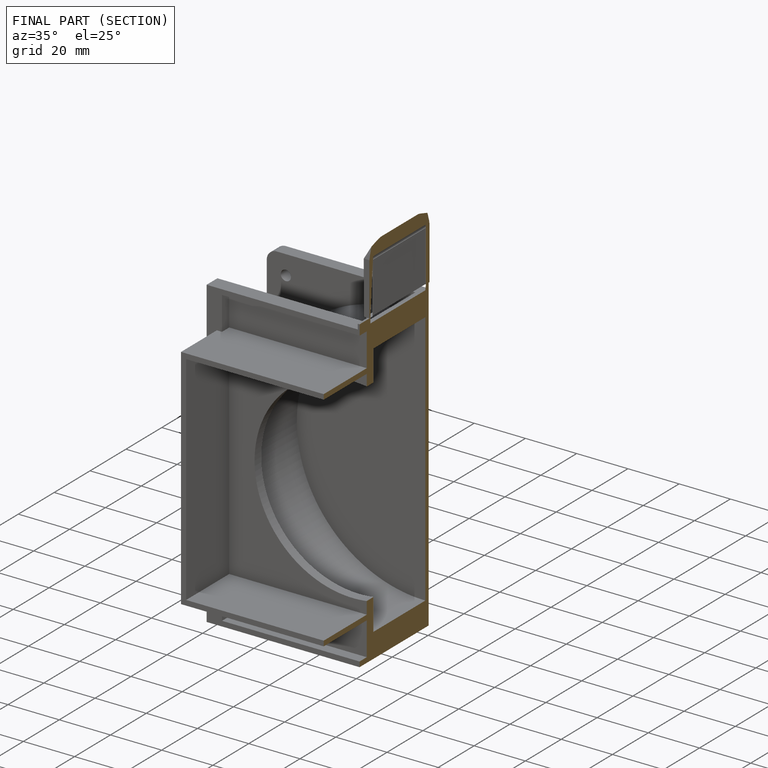
[diagram: finished part — half-section view (interior)]
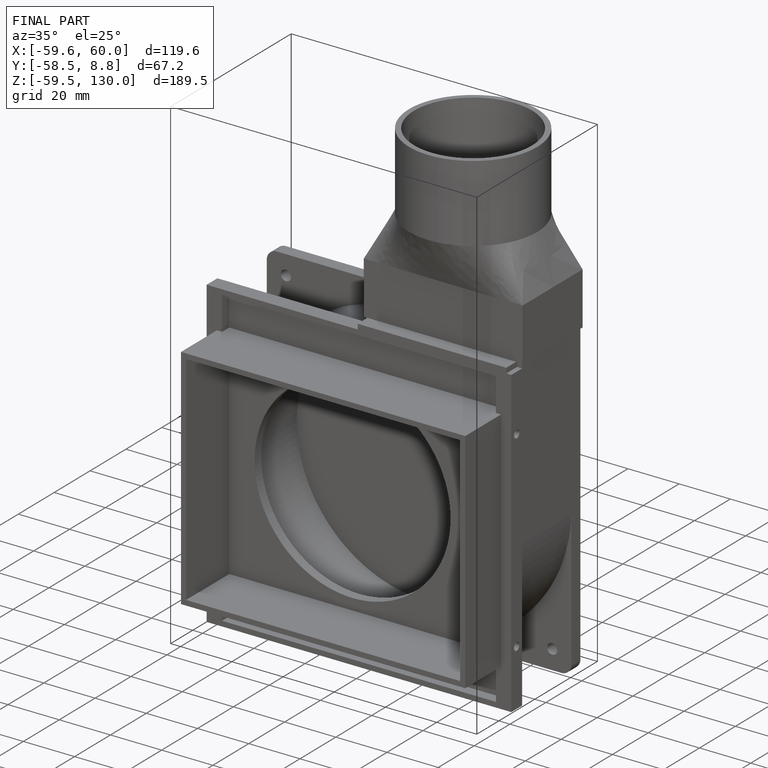
[diagram: finished part — iso view with bounding-box wireframe]
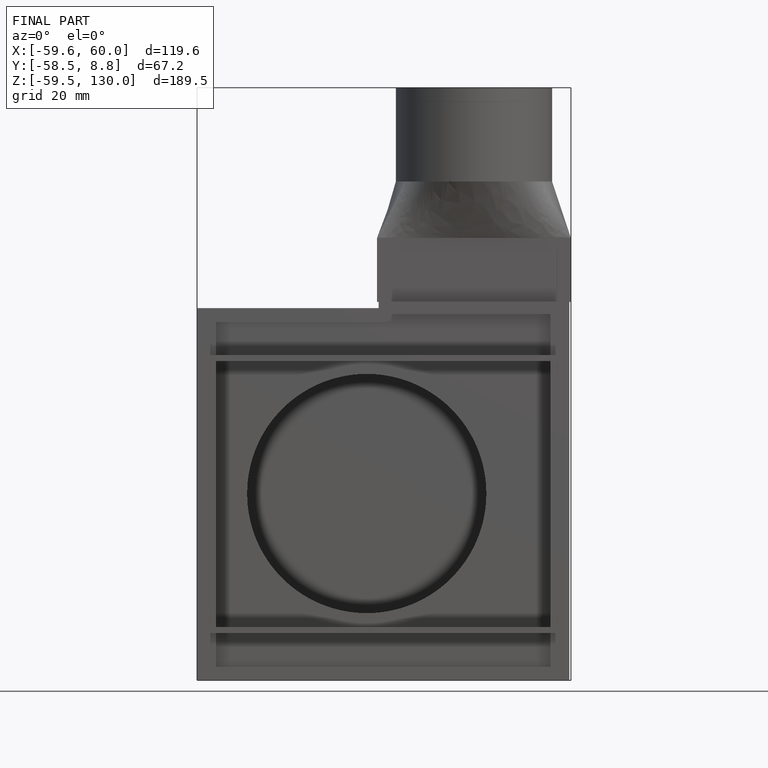
[diagram: finished part — front view with bounding-box wireframe]
